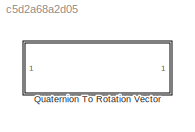
MODEL slx_c5d2a68a2d05
KIND library
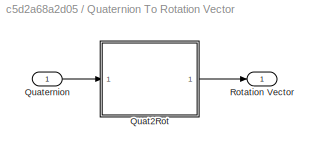
BLOCK [SubSystem] Quaternion To Rotation Vector
  Ports = [1, 1]
  RequestExecContextInheritance = off
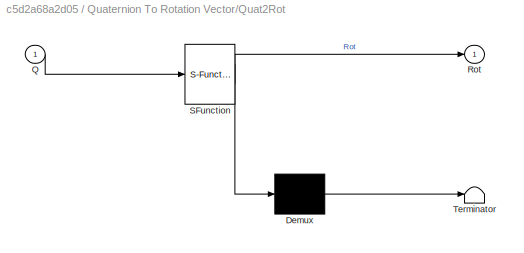
BLOCK [SubSystem] Quaternion To Rotation Vector/Quat2Rot
  ErrorFcn = Stateflow.Translate.translate
  PermitHierarchicalResolution = ExplicitOnly
  Ports = [1, 1]
  RequestExecContextInheritance = off
  SFBlockType = MATLAB Function
  TreatAsAtomicUnit = on
BLOCK [Demux] Quaternion To Rotation Vector/Quat2Rot/ Demux 
  Outputs = 1
  Ports = [1, 1]
BLOCK [S-Function] Quaternion To Rotation Vector/Quat2Rot/ SFunction 
  EnableBusSupport = off
  FunctionName = sf_sfun
  PortCounts = [1 2]
  Ports = [1, 2]
  Tag = Stateflow S-Function Quat2Rot 2
BLOCK [Terminator] Quaternion To Rotation Vector/Quat2Rot/ Terminator 
BLOCK [Inport] Quaternion To Rotation Vector/Quat2Rot/Q
  IconDisplay = Port number
BLOCK [Outport] Quaternion To Rotation Vector/Quat2Rot/Rot
  IconDisplay = Port number
BLOCK [Inport] Quaternion To Rotation Vector/Quaternion
  IconDisplay = Port number
BLOCK [Outport] Quaternion To Rotation Vector/Rotation Vector
  IconDisplay = Port number
LINE Quaternion To Rotation Vector/Quat2Rot:1 -> Quaternion To Rotation Vector/Rotation Vector:1
LINE Quaternion To Rotation Vector/Quaternion:1 -> Quaternion To Rotation Vector/Quat2Rot:1
CHART Quaternion To Rotation Vector/Quat2Rot states=1 transitions=1
  STATE_LABEL 'eML_blk_kernel()'
  STATE_LABEL 'SCRIPT:\nfunction Rot=Quat2Rot(Q)\n% Returns a vector whose norm corresponds to the rotation angle\n% (between 0 and pi) of quaternion Q\nif norm(Q)==0\n    Rot=[0;0;0];\nelse\n    Q=Q/norm(Q);\n    if Q(1)<0\n        Q=-Q; % Positive real part\n    end   \n    w=Q(1);q=Q(2:4);\n    if w==1\n        Rot=[0;0;0];\n    else\n        Rot=2*atan2(norm(q),w)*q/norm(q);  % Euler vector\n    end\nend\nend'
